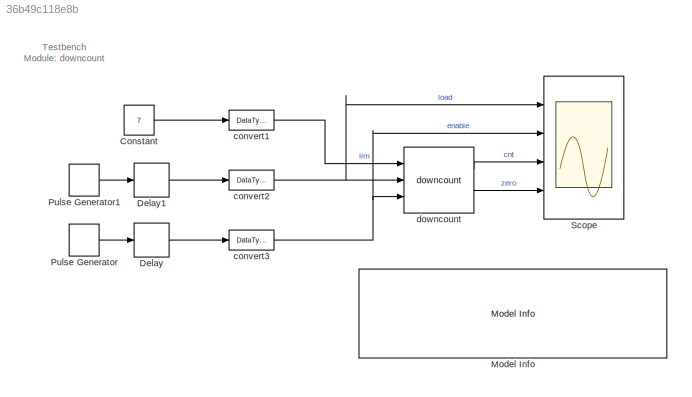
MODEL slx_36b49c118e8b
KIND model
CONFIG AbsTol = auto
CONFIG EnableMultiTasking = off
CONFIG FixedStep = auto
CONFIG MaxStep = auto
CONFIG MinStep = auto
CONFIG RelTol = 1e-3
CONFIG SampleTimeConstraint = Unconstrained
CONFIG Solver = FixedStepDiscrete
CONFIG SolverName = FixedStepDiscrete
CONFIG StartTime = 0.0
CONFIG StopTime = 100
BLOCK [Constant] Constant
  Value = 7
BLOCK [Delay] Delay
  DelayLength = 12
  InitialCondition = 0
  InputPortMap = u0
  Ports = [1, 1]
BLOCK [Delay] Delay1
  DelayLength = 6
  InitialCondition = 0
  InputPortMap = u0
  Ports = [1, 1]
BLOCK [Reference] Model Info  REF=simulink/Model-Wide
Utilities/Model Info
  Ports = []
  SourceBlock = simulink/Model-Wide\nUtilities/Model Info
  SourceProductBaseCode = SL
  SourceProductName = Simulink
  SourceType = CMBlock
BLOCK [DiscretePulseGenerator] Pulse Generator
  Period = 3
  Ports = [0, 1]
  PulseWidth = 3
BLOCK [DiscretePulseGenerator] Pulse Generator1
  Period = 50
  PhaseDelay = 2
  Ports = [0, 1]
BLOCK [Scope] Scope
  Floating = off
  NumInputPorts = 4
  Ports = [4]
  ScopeSpecificationString = Simulink.scopes.TimeScopeBlockCfg('CurrentConfiguration', extmgr.ConfigurationSet(extmgr.Configuration('Core','General UI',true),extmgr.Configuration('Core','Source UI',true),extmgr.Configuration('Sources','WiredSimulink',true),extmgr.Configuration('Visuals','Time Domain',true,'SerializedDisplays',{struct('MinYLimReal','-0.125','MaxYLimReal','1.125','YLabelReal','','MinYLimMag','0.00000','MaxYLimM...<+3389ch>
BLOCK [DataTypeConversion] convert1
  OutDataTypeStr = fixdt(0,8,0)
  RndMeth = Floor
  SaturateOnIntegerOverflow = off
BLOCK [DataTypeConversion] convert2
  RndMeth = Floor
  SaturateOnIntegerOverflow = off
BLOCK [DataTypeConversion] convert3
  RndMeth = Floor
  SaturateOnIntegerOverflow = off
BLOCK [Reference] downcount  REF=lib_dsphdlcontrol_v1/downcount  (lib defined in slx_169a934beb0a)
  Ports = [3, 2]
  SourceBlock = lib_dsphdlcontrol_v1/downcount
  SourceProductName = DSPHDL Library
  SourceType = A simple down counter.
ANNOTATION (root): Testbench Module: downcount
LINE Constant:1 -> convert1:1
LINE Delay1:1 -> convert2:1
LINE Delay:1 -> convert3:1
LINE Pulse Generator1:1 -> Delay1:1
LINE Pulse Generator:1 -> Delay:1
LINE convert1:1 -> downcount:1
NET convert2:1 -> Scope:1, downcount:2
NET convert3:1 -> Scope:2, downcount:3
LINE downcount:1 -> Scope:3
LINE downcount:2 -> Scope:4
note: NET lines group one-source signal fan-out (src -> all destinations, sorted); 1:1 wires keep LINE
